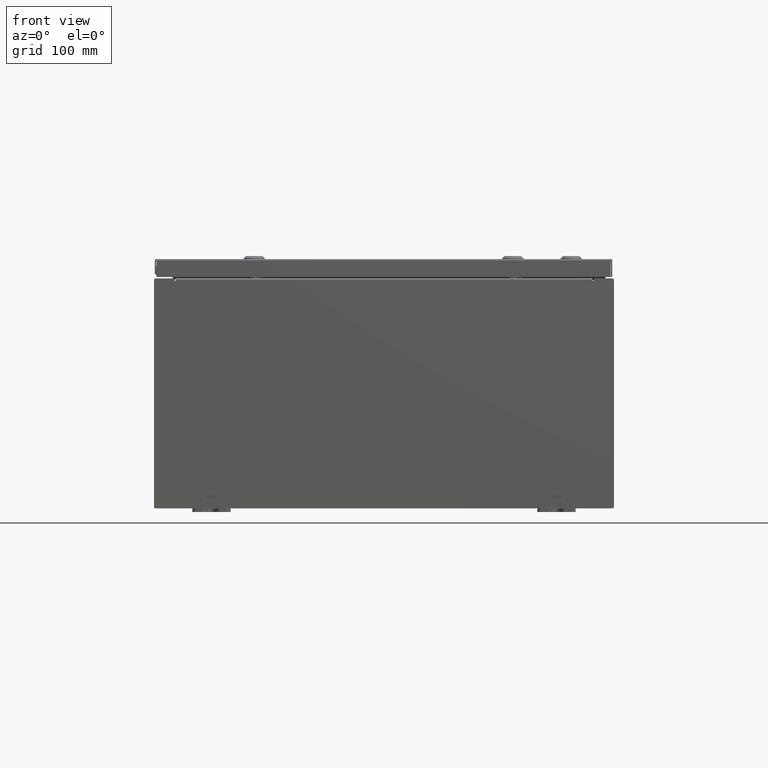
[diagram: clean part render]
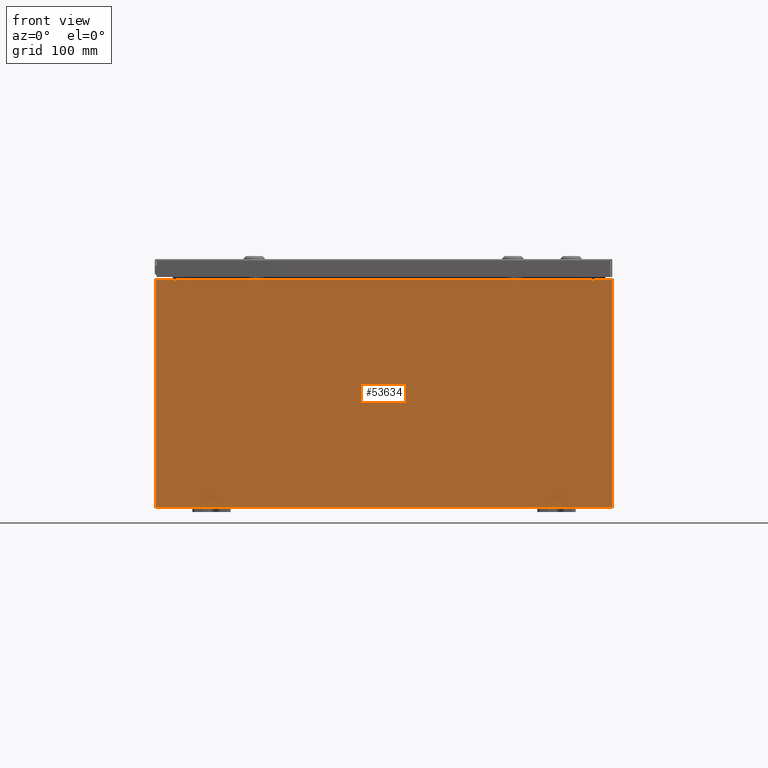
[diagram: same view with one face highlighted and labeled with its STEP entity id]
A machine part, front view. The second image highlights one B-rep face of the part: STEP entity #53634.
In plain terms, the highlighted planar face has unit normal (-0, 1, -0).
Its self-contained STEP definition (entity closure, byte-faithful):
#252 = LINE ( 'NONE', #62613, #49241 ) ;
#678 = FACE_OUTER_BOUND ( 'NONE', #41853, .T. ) ;
#681 = DIRECTION ( 'NONE',  ( 0.0000000000000000000, 0.0000000000000000000, -1.000000000000000000 ) ) ;
#1650 = VECTOR ( 'NONE', #36179, 39.37007874015748100 ) ;
#1899 = CARTESIAN_POINT ( 'NONE',  ( 10.88720000000000200, 0.0000000000000000000, 0.0000000000000000000 ) ) ;
#3336 = CARTESIAN_POINT ( 'NONE',  ( -11.92530000000000000, 0.0000000000000000000, -5.925299999999999100 ) ) ;
#3351 = CARTESIAN_POINT ( 'NONE',  ( 10.92455000000000000, 0.0000000000000000000, 5.925300000000001800 ) ) ;
#5124 = VERTEX_POINT ( 'NONE', #31052 ) ;
#5636 = CARTESIAN_POINT ( 'NONE',  ( -10.88720000000000000, -1.707404996040164500E-016, 5.912300000000001000 ) ) ;
#5698 = EDGE_CURVE ( 'NONE', #52741, #11266, #252, .T. ) ;
#5793 = CARTESIAN_POINT ( 'NONE',  ( -10.88720000000000000, -0.0000000000000000000, 5.874950000000001000 ) ) ;
#5944 = DIRECTION ( 'NONE',  ( 0.0000000000000000000, 0.0000000000000000000, -1.000000000000000000 ) ) ;
#6468 = DIRECTION ( 'NONE',  ( 0.0000000000000000000, 0.0000000000000000000, -1.000000000000000000 ) ) ;
#7044 = VERTEX_POINT ( 'NONE', #20758 ) ;
#7103 = DIRECTION ( 'NONE',  ( 1.000000000000000000, 0.0000000000000000000, 4.581600452255731000E-017 ) ) ;
#7186 = ORIENTED_EDGE ( 'NONE', *, *, #18159, .T. ) ;
#7679 = EDGE_CURVE ( 'NONE', #53611, #47518, #33623, .T. ) ;
#8739 = VERTEX_POINT ( 'NONE', #5793 ) ;
#10179 = CARTESIAN_POINT ( 'NONE',  ( -10.88720000000000000, -0.0000000000000000000, 0.0000000000000000000 ) ) ;
#10481 = EDGE_CURVE ( 'NONE', #59247, #52741, #62832, .T. ) ;
#10503 = LINE ( 'NONE', #1899, #32054 ) ;
#11266 = VERTEX_POINT ( 'NONE', #12136 ) ;
#11652 = DIRECTION ( 'NONE',  ( -0.0000000000000000000, 1.000000000000000000, -0.0000000000000000000 ) ) ;
#12136 = CARTESIAN_POINT ( 'NONE',  ( 11.92530000000000000, 0.0000000000000000000, -5.925299999999999100 ) ) ;
#12685 = CARTESIAN_POINT ( 'NONE',  ( 10.90587500000000200, 0.0000000000000000000, 5.874950000000001000 ) ) ;
#12797 = ORIENTED_EDGE ( 'NONE', *, *, #51595, .F. ) ;
#13393 = ORIENTED_EDGE ( 'NONE', *, *, #38143, .F. ) ;
#15304 = VECTOR ( 'NONE', #681, 39.37007874015748100 ) ;
#16964 = CARTESIAN_POINT ( 'NONE',  ( -11.92530000000000000, 0.0000000000000000000, 5.925300000000000000 ) ) ;
#18159 = EDGE_CURVE ( 'NONE', #11266, #46079, #62350, .T. ) ;
#19600 = LINE ( 'NONE', #45579, #31066 ) ;
#20758 = CARTESIAN_POINT ( 'NONE',  ( -10.92454999999999800, 0.0000000000000000000, 5.925300000000000000 ) ) ;
#21355 = ORIENTED_EDGE ( 'NONE', *, *, #10481, .T. ) ;
#21985 = DIRECTION ( 'NONE',  ( -0.0000000000000000000, 1.000000000000000000, -0.0000000000000000000 ) ) ;
#22405 = VERTEX_POINT ( 'NONE', #5636 ) ;
#22946 = CARTESIAN_POINT ( 'NONE',  ( 10.92455000000000000, 0.0000000000000000000, 5.874950000000001000 ) ) ;
#23151 = CARTESIAN_POINT ( 'NONE',  ( 0.0000000000000000000, 0.0000000000000000000, 0.0000000000000000000 ) ) ;
#24200 = EDGE_CURVE ( 'NONE', #29678, #7044, #54599, .T. ) ;
#25089 = LINE ( 'NONE', #29360, #52639 ) ;
#25473 = AXIS2_PLACEMENT_3D ( 'NONE', #23151, #57467, #28063 ) ;
#26026 = CARTESIAN_POINT ( 'NONE',  ( 11.92530000000000000, 0.0000000000000000000, 5.925300000000001800 ) ) ;
#26534 = DIRECTION ( 'NONE',  ( 0.0000000000000000000, 0.0000000000000000000, 1.000000000000000000 ) ) ;
#28063 = DIRECTION ( 'NONE',  ( 0.0000000000000000000, -0.0000000000000000000, -1.000000000000000000 ) ) ;
#28683 = DIRECTION ( 'NONE',  ( -1.000000000000000000, -0.0000000000000000000, -0.0000000000000000000 ) ) ;
#28900 = CARTESIAN_POINT ( 'NONE',  ( -11.92530000000000000, 0.0000000000000000000, -5.925299999999999100 ) ) ;
#28990 = AXIS2_PLACEMENT_3D ( 'NONE', #12685, #21985, #6468 ) ;
#29360 = CARTESIAN_POINT ( 'NONE',  ( -11.92530000000000000, 0.0000000000000000000, 5.925300000000000000 ) ) ;
#29678 = VERTEX_POINT ( 'NONE', #34957 ) ;
#30172 = EDGE_CURVE ( 'NONE', #59247, #53611, #31187, .T. ) ;
#30379 = EDGE_CURVE ( 'NONE', #46079, #29678, #25089, .T. ) ;
#30477 = ORIENTED_EDGE ( 'NONE', *, *, #24200, .T. ) ;
#30809 = ORIENTED_EDGE ( 'NONE', *, *, #30379, .T. ) ;
#31052 = CARTESIAN_POINT ( 'NONE',  ( 10.88720000000000200, 0.0000000000000000000, 5.912300000000001000 ) ) ;
#31066 = VECTOR ( 'NONE', #40679, 39.37007874015748100 ) ;
#31187 = LINE ( 'NONE', #57294, #55770 ) ;
#31300 = CARTESIAN_POINT ( 'NONE',  ( -10.88720000000000200, -1.707404996040164500E-016, 5.912300000000001000 ) ) ;
#32054 = VECTOR ( 'NONE', #26534, 39.37007874015748100 ) ;
#33623 = CIRCLE ( 'NONE', #28990, 0.01867499999999949400 ) ;
#34649 = EDGE_CURVE ( 'NONE', #22405, #5124, #40710, .T. ) ;
#34957 = CARTESIAN_POINT ( 'NONE',  ( -11.92530000000000000, 0.0000000000000000000, 5.925300000000000000 ) ) ;
#35701 = EDGE_CURVE ( 'NONE', #8739, #53804, #53692, .T. ) ;
#36179 = DIRECTION ( 'NONE',  ( 1.000000000000000000, 0.0000000000000000000, 0.0000000000000000000 ) ) ;
#36624 = VECTOR ( 'NONE', #42646, 39.37007874015748100 ) ;
#38143 = EDGE_CURVE ( 'NONE', #47518, #5124, #10503, .T. ) ;
#38357 = ORIENTED_EDGE ( 'NONE', *, *, #5698, .T. ) ;
#40679 = DIRECTION ( 'NONE',  ( 0.0000000000000000000, 0.0000000000000000000, 1.000000000000000000 ) ) ;
#40710 = LINE ( 'NONE', #31300, #1650 ) ;
#40925 = ORIENTED_EDGE ( 'NONE', *, *, #35701, .F. ) ;
#41066 = CARTESIAN_POINT ( 'NONE',  ( -10.90587500000000000, 0.0000000000000000000, 5.874950000000001000 ) ) ;
#41430 = ORIENTED_EDGE ( 'NONE', *, *, #34649, .T. ) ;
#41853 = EDGE_LOOP ( 'NONE', ( #53922, #40925, #12797, #41430, #13393, #57837, #43382, #21355, #38357, #7186, #30809, #30477 ) ) ;
#42646 = DIRECTION ( 'NONE',  ( 1.000000000000000000, 0.0000000000000000000, 4.581600452255731000E-017 ) ) ;
#42905 = LINE ( 'NONE', #10179, #15304 ) ;
#42912 = EDGE_CURVE ( 'NONE', #53804, #7044, #19600, .T. ) ;
#43382 = ORIENTED_EDGE ( 'NONE', *, *, #30172, .F. ) ;
#43671 = CARTESIAN_POINT ( 'NONE',  ( 10.88720000000000200, 0.0000000000000000000, 5.874950000000001000 ) ) ;
#43687 = CARTESIAN_POINT ( 'NONE',  ( -10.92454999999999800, 0.0000000000000000000, 5.874950000000001000 ) ) ;
#45579 = CARTESIAN_POINT ( 'NONE',  ( -10.92454999999999800, -0.0000000000000000000, 0.0000000000000000000 ) ) ;
#45980 = AXIS2_PLACEMENT_3D ( 'NONE', #41066, #11652, #46002 ) ;
#46002 = DIRECTION ( 'NONE',  ( 0.0000000000000000000, 0.0000000000000000000, -1.000000000000000000 ) ) ;
#46079 = VERTEX_POINT ( 'NONE', #3336 ) ;
#47518 = VERTEX_POINT ( 'NONE', #43671 ) ;
#49241 = VECTOR ( 'NONE', #5944, 39.37007874015748100 ) ;
#50323 = CARTESIAN_POINT ( 'NONE',  ( -11.92530000000000000, 0.0000000000000000000, 5.925300000000000000 ) ) ;
#51595 = EDGE_CURVE ( 'NONE', #22405, #8739, #42905, .T. ) ;
#52639 = VECTOR ( 'NONE', #58773, 39.37007874015748100 ) ;
#52741 = VERTEX_POINT ( 'NONE', #26026 ) ;
#53012 = VECTOR ( 'NONE', #7103, 39.37007874015748100 ) ;
#53611 = VERTEX_POINT ( 'NONE', #22946 ) ;
#53634 = ADVANCED_FACE ( 'NONE', ( #678 ), #62206, .F. ) ;
#53692 = CIRCLE ( 'NONE', #45980, 0.01867499999999949400 ) ;
#53804 = VERTEX_POINT ( 'NONE', #43687 ) ;
#53922 = ORIENTED_EDGE ( 'NONE', *, *, #42912, .F. ) ;
#54599 = LINE ( 'NONE', #16964, #53012 ) ;
#55770 = VECTOR ( 'NONE', #62240, 39.37007874015748100 ) ;
#57294 = CARTESIAN_POINT ( 'NONE',  ( 10.92455000000000000, 0.0000000000000000000, 0.0000000000000000000 ) ) ;
#57467 = DIRECTION ( 'NONE',  ( 0.0000000000000000000, -1.000000000000000000, 0.0000000000000000000 ) ) ;
#57837 = ORIENTED_EDGE ( 'NONE', *, *, #7679, .F. ) ;
#58773 = DIRECTION ( 'NONE',  ( -0.0000000000000000000, -0.0000000000000000000, 1.000000000000000000 ) ) ;
#59247 = VERTEX_POINT ( 'NONE', #3351 ) ;
#60801 = VECTOR ( 'NONE', #28683, 39.37007874015748100 ) ;
#62206 = PLANE ( 'NONE',  #25473 ) ;
#62240 = DIRECTION ( 'NONE',  ( 0.0000000000000000000, 0.0000000000000000000, -1.000000000000000000 ) ) ;
#62350 = LINE ( 'NONE', #28900, #60801 ) ;
#62613 = CARTESIAN_POINT ( 'NONE',  ( 11.92530000000000000, 0.0000000000000000000, 5.925300000000001800 ) ) ;
#62832 = LINE ( 'NONE', #50323, #36624 ) ;